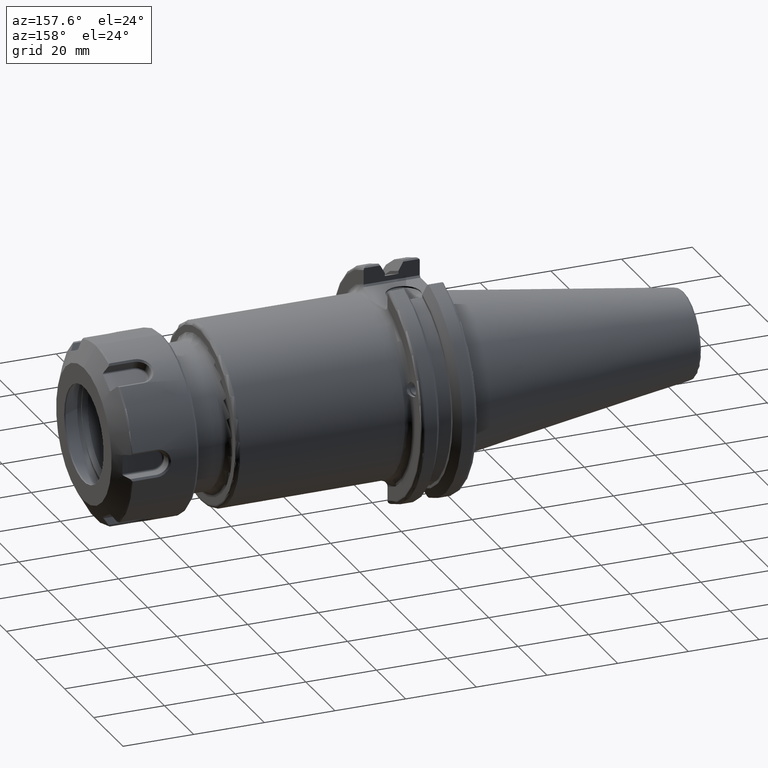
[diagram: clean part render]
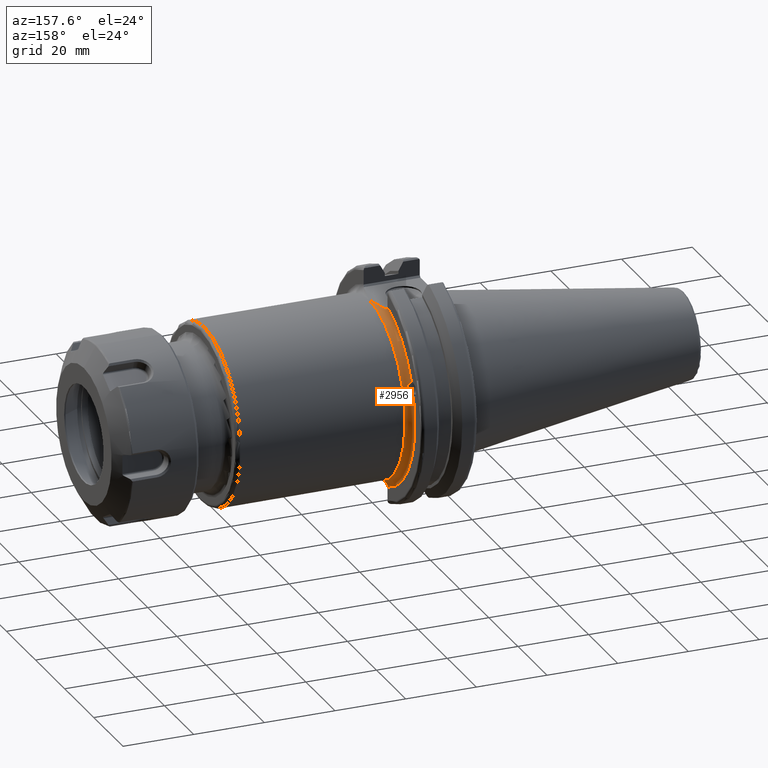
[diagram: same view with one face highlighted and labeled with its STEP entity id]
A machine part, auxiliary view. The second image highlights one B-rep face of the part: STEP entity #2956.
In plain terms, the highlighted toroidal blend (fillet) surface has major radius 27 mm and minor (blend) radius 2 mm.
Its self-contained STEP definition (entity closure, byte-faithful):
#140=TOROIDAL_SURFACE('',#3250,27.,2.);
#176=B_SPLINE_CURVE_WITH_KNOTS('',3,(#4691,#4692,#4693,#4694,#4695,#4696,
#4697,#4698,#4699,#4700,#4701,#4702),.UNSPECIFIED.,.F.,.F.,(4,2,2,2,2,4),
(-0.927176283224262,-0.875781286146673,-0.822432879760578,-0.758512419205263,
-0.688499093022756,-0.637070261137716),.UNSPECIFIED.);
#177=B_SPLINE_CURVE_WITH_KNOTS('',3,(#4705,#4706,#4707,#4708,#4709,#4710,
#4711,#4712,#4713,#4714,#4715,#4716,#4717,#4718),.UNSPECIFIED.,.F.,.F.,
(4,2,2,2,2,2,4),(-0.637070261137716,-0.625260630299269,-0.552475461884166,
-0.480311452688189,-0.420811316848223,-0.362250554794261,-0.315462108949841),
 .UNSPECIFIED.);
#184=B_SPLINE_CURVE_WITH_KNOTS('',3,(#4799,#4800,#4801,#4802),
 .UNSPECIFIED.,.F.,.F.,(4,4),(0.303088258028941,0.325015458758932),
 .UNSPECIFIED.);
#185=B_SPLINE_CURVE_WITH_KNOTS('',3,(#4804,#4805,#4806,#4807,#4808,#4809),
 .UNSPECIFIED.,.F.,.F.,(4,2,4),(0.336659705017017,0.399743384623645,0.405340913739917),
 .UNSPECIFIED.);
#186=B_SPLINE_CURVE_WITH_KNOTS('',3,(#4810,#4811,#4812,#4813,#4814,#4815),
 .UNSPECIFIED.,.F.,.F.,(4,2,4),(2.23016544285238,2.47804003931022,2.96934867053926),
 .UNSPECIFIED.);
#187=B_SPLINE_CURVE_WITH_KNOTS('',3,(#4817,#4818,#4819,#4820,#4821,#4822,
#4823,#4824),.UNSPECIFIED.,.F.,.F.,(4,2,2,4),(0.654595680872933,0.711508666840042,
0.779699669565535,0.787973093699329),.UNSPECIFIED.);
#188=B_SPLINE_CURVE_WITH_KNOTS('',3,(#4825,#4826,#4827,#4828,#4829,#4830,
#4831,#4832),.UNSPECIFIED.,.F.,.F.,(4,2,2,4),(0.731736258694253,0.754886403734763,
0.832240560035354,0.91129497557735),.UNSPECIFIED.);
#448=FACE_OUTER_BOUND('',#625,.T.);
#625=EDGE_LOOP('',(#2152,#2153,#2154,#2155,#2156,#2157,#2158,#2159,#2160,
#2161));
#1157=CIRCLE('',#3240,27.);
#1159=CIRCLE('',#3242,27.);
#1163=CIRCLE('',#3248,25.);
#1317=VERTEX_POINT('',#4689);
#1318=VERTEX_POINT('',#4690);
#1319=VERTEX_POINT('',#4703);
#1320=VERTEX_POINT('',#4721);
#1323=VERTEX_POINT('',#4727);
#1327=VERTEX_POINT('',#4751);
#1332=VERTEX_POINT('',#4776);
#1333=VERTEX_POINT('',#4798);
#1334=VERTEX_POINT('',#4803);
#1335=VERTEX_POINT('',#4816);
#1627=EDGE_CURVE('',#1317,#1318,#176,.T.);
#1629=EDGE_CURVE('',#1318,#1319,#177,.T.);
#1631=EDGE_CURVE('',#1320,#1317,#1157,.T.);
#1635=EDGE_CURVE('',#1319,#1323,#1159,.T.);
#1646=EDGE_CURVE('',#1327,#1332,#1163,.T.);
#1648=EDGE_CURVE('',#1333,#1323,#184,.F.);
#1649=EDGE_CURVE('',#1334,#1333,#185,.F.);
#1650=EDGE_CURVE('',#1327,#1334,#186,.F.);
#1651=EDGE_CURVE('',#1332,#1335,#187,.T.);
#1652=EDGE_CURVE('',#1320,#1335,#188,.F.);
#2152=ORIENTED_EDGE('',*,*,#1627,.T.);
#2153=ORIENTED_EDGE('',*,*,#1629,.T.);
#2154=ORIENTED_EDGE('',*,*,#1635,.T.);
#2155=ORIENTED_EDGE('',*,*,#1648,.F.);
#2156=ORIENTED_EDGE('',*,*,#1649,.F.);
#2157=ORIENTED_EDGE('',*,*,#1650,.F.);
#2158=ORIENTED_EDGE('',*,*,#1646,.T.);
#2159=ORIENTED_EDGE('',*,*,#1651,.T.);
#2160=ORIENTED_EDGE('',*,*,#1652,.F.);
#2161=ORIENTED_EDGE('',*,*,#1631,.T.);
#2956=ADVANCED_FACE('',(#448),#140,.F.);
#3240=AXIS2_PLACEMENT_3D('',#4722,#3643,#3644);
#3242=AXIS2_PLACEMENT_3D('',#4729,#3649,#3650);
#3248=AXIS2_PLACEMENT_3D('',#4795,#3662,#3663);
#3250=AXIS2_PLACEMENT_3D('',#4797,#3666,#3667);
#3643=DIRECTION('center_axis',(1.,0.,0.));
#3644=DIRECTION('ref_axis',(0.,0.986107628833363,0.166107628833363));
#3649=DIRECTION('center_axis',(1.,0.,0.));
#3650=DIRECTION('ref_axis',(0.,0.986107628833363,0.166107628833363));
#3662=DIRECTION('center_axis',(-1.,0.,0.));
#3663=DIRECTION('ref_axis',(0.,0.986107628833363,0.166107628833363));
#3666=DIRECTION('center_axis',(-1.,0.,0.));
#3667=DIRECTION('ref_axis',(0.,0.,1.));
#4689=CARTESIAN_POINT('',(19.05,25.9857875753917,7.33067828284791));
#4690=CARTESIAN_POINT('',(20.0572883026574,23.7401704288276,8.64071539249995));
#4691=CARTESIAN_POINT('Ctrl Pts',(19.05,25.9857875753917,7.33067828284789));
#4692=CARTESIAN_POINT('Ctrl Pts',(19.05,25.8079249843895,7.27090706250332));
#4693=CARTESIAN_POINT('Ctrl Pts',(19.0763491527662,25.6276067836647,7.22948374093522));
#4694=CARTESIAN_POINT('Ctrl Pts',(19.179301644092,25.2605155488678,7.20242132434183));
#4695=CARTESIAN_POINT('Ctrl Pts',(19.2549229329814,25.0836777122487,7.21976372323397));
#4696=CARTESIAN_POINT('Ctrl Pts',(19.4500795376343,24.7189786185315,7.3302290853568));
#4697=CARTESIAN_POINT('Ctrl Pts',(19.569868609812,24.545759449231,7.43467242666136));
#4698=CARTESIAN_POINT('Ctrl Pts',(19.8017544072604,24.2273789175397,7.72538675209008));
#4699=CARTESIAN_POINT('Ctrl Pts',(19.9108831642119,24.0873975546187,7.91751324339241));
#4700=CARTESIAN_POINT('Ctrl Pts',(20.0297624375097,23.8800787573968,8.29395212164478));
#4701=CARTESIAN_POINT('Ctrl Pts',(20.0572883026574,23.8045180814941,8.46392166980369));
#4702=CARTESIAN_POINT('Ctrl Pts',(20.0572883026574,23.7401704288276,8.64071539249995));
#4703=CARTESIAN_POINT('',(19.05,24.6183373430118,11.0877169185396));
#4705=CARTESIAN_POINT('Ctrl Pts',(20.0572883026574,23.7401704288276,8.64071539249994));
#4706=CARTESIAN_POINT('Ctrl Pts',(20.0572883026574,23.7253942420962,8.68131263189019));
#4707=CARTESIAN_POINT('Ctrl Pts',(20.0558563796736,23.711234431295,8.722278899097));
#4708=CARTESIAN_POINT('Ctrl Pts',(20.0352037150419,23.6144738455388,9.01817185361392));
#4709=CARTESIAN_POINT('Ctrl Pts',(19.9641222899952,23.5643860249972,9.25770704656559));
#4710=CARTESIAN_POINT('Ctrl Pts',(19.786347923896,23.5295766138781,9.69002842261821));
#4711=CARTESIAN_POINT('Ctrl Pts',(19.6737767139645,23.5431851084716,9.89769783178243));
#4712=CARTESIAN_POINT('Ctrl Pts',(19.464502768621,23.6456107918246,10.2534189623958));
#4713=CARTESIAN_POINT('Ctrl Pts',(19.3699215675432,23.7201942781506,10.4032179168352));
#4714=CARTESIAN_POINT('Ctrl Pts',(19.20685044949,23.9325652842474,10.6742524022146));
#4715=CARTESIAN_POINT('Ctrl Pts',(19.1416512600207,24.064685233715,10.7899739101358));
#4716=CARTESIAN_POINT('Ctrl Pts',(19.0668242850526,24.3445006993158,10.9678202259172));
#4717=CARTESIAN_POINT('Ctrl Pts',(19.05,24.4787720664895,11.0329518098625));
#4718=CARTESIAN_POINT('Ctrl Pts',(19.05,24.6183373430118,11.0877169185396));
#4721=CARTESIAN_POINT('',(19.05,8.19,-25.727881762788));
#4722=CARTESIAN_POINT('Origin',(19.05,0.,0.));
#4727=CARTESIAN_POINT('',(19.05,8.19,25.727881762788));
#4729=CARTESIAN_POINT('Origin',(19.05,0.,0.));
#4751=CARTESIAN_POINT('',(21.05,0.,25.));
#4776=CARTESIAN_POINT('',(21.0500000001268,8.13173199235377,-23.6405358400466));
#4795=CARTESIAN_POINT('Origin',(21.05,0.,0.));
#4797=CARTESIAN_POINT('Origin',(21.05,0.,0.));
#4798=CARTESIAN_POINT('',(19.0618131931761,8.18999999958067,25.499999998742));
#4799=CARTESIAN_POINT('Ctrl Pts',(19.05,8.19,25.727881762788));
#4800=CARTESIAN_POINT('Ctrl Pts',(19.05,8.19,25.654791093688));
#4801=CARTESIAN_POINT('Ctrl Pts',(19.0537075605716,8.19,25.5779813646566));
#4802=CARTESIAN_POINT('Ctrl Pts',(19.0618131931331,8.19,25.4999999987372));
#4803=CARTESIAN_POINT('',(19.2368104389694,7.689999999755,24.9999999998775));
#4804=CARTESIAN_POINT('Ctrl Pts',(19.0618131931176,8.189999999157,25.499999999157));
#4805=CARTESIAN_POINT('Ctrl Pts',(19.0836047193673,8.03131687446833,25.3413168744683));
#4806=CARTESIAN_POINT('Ctrl Pts',(19.1404176794883,7.86599690459264,25.1759969045926));
#4807=CARTESIAN_POINT('Ctrl Pts',(19.2225705229029,7.71489557067069,25.0248955706707));
#4808=CARTESIAN_POINT('Ctrl Pts',(19.2295487121212,7.70248230169995,25.0124823017));
#4809=CARTESIAN_POINT('Ctrl Pts',(19.236810438939,7.68999999980728,24.9999999998073));
#4810=CARTESIAN_POINT('Ctrl Pts',(19.2368104388624,7.68999999974034,25.));
#4811=CARTESIAN_POINT('Ctrl Pts',(19.3559645967454,6.81933205047396,25.));
#4812=CARTESIAN_POINT('Ctrl Pts',(19.5244838041521,5.93467134315296,25.));
#4813=CARTESIAN_POINT('Ctrl Pts',(20.1096009484594,3.30771706894492,25.));
#4814=CARTESIAN_POINT('Ctrl Pts',(20.6042757582458,1.57587316941819,25.));
#4815=CARTESIAN_POINT('Ctrl Pts',(21.05,0.,25.));
#4816=CARTESIAN_POINT('',(19.8283245499626,8.18999999984279,-24.0607934380388));
#4817=CARTESIAN_POINT('Ctrl Pts',(21.0500000001289,8.13173199236911,-23.6405358400414));
#4818=CARTESIAN_POINT('Ctrl Pts',(20.863274857035,8.15469875928219,-23.6326358670952));
#4819=CARTESIAN_POINT('Ctrl Pts',(20.6765935949403,8.17102816732554,-23.6545759158662));
#4820=CARTESIAN_POINT('Ctrl Pts',(20.2770353643105,8.19275750651787,-23.7692079118284));
#4821=CARTESIAN_POINT('Ctrl Pts',(20.0741230127647,8.19496511800329,-23.8728358308367));
#4822=CARTESIAN_POINT('Ctrl Pts',(19.8711402246526,8.19107654374495,-24.0262499947083));
#4823=CARTESIAN_POINT('Ctrl Pts',(19.8495449789407,8.1905744697526,-24.0433039394669));
#4824=CARTESIAN_POINT('Ctrl Pts',(19.8283245499648,8.18999999968564,-24.0607934380371));
#4825=CARTESIAN_POINT('Ctrl Pts',(19.8283245499069,8.19,-24.0607934379773));
#4826=CARTESIAN_POINT('Ctrl Pts',(19.7639028892766,8.19,-24.1132949856376));
#4827=CARTESIAN_POINT('Ctrl Pts',(19.7040336511356,8.19,-24.1688297419037));
#4828=CARTESIAN_POINT('Ctrl Pts',(19.4711507313005,8.19,-24.4096619494323));
#4829=CARTESIAN_POINT('Ctrl Pts',(19.3039787951941,8.19,-24.6700312865864));
#4830=CARTESIAN_POINT('Ctrl Pts',(19.1096655954463,8.19,-25.1538294031389));
#4831=CARTESIAN_POINT('Ctrl Pts',(19.05,8.19,-25.4643670443147));
#4832=CARTESIAN_POINT('Ctrl Pts',(19.05,8.19,-25.727881762788));